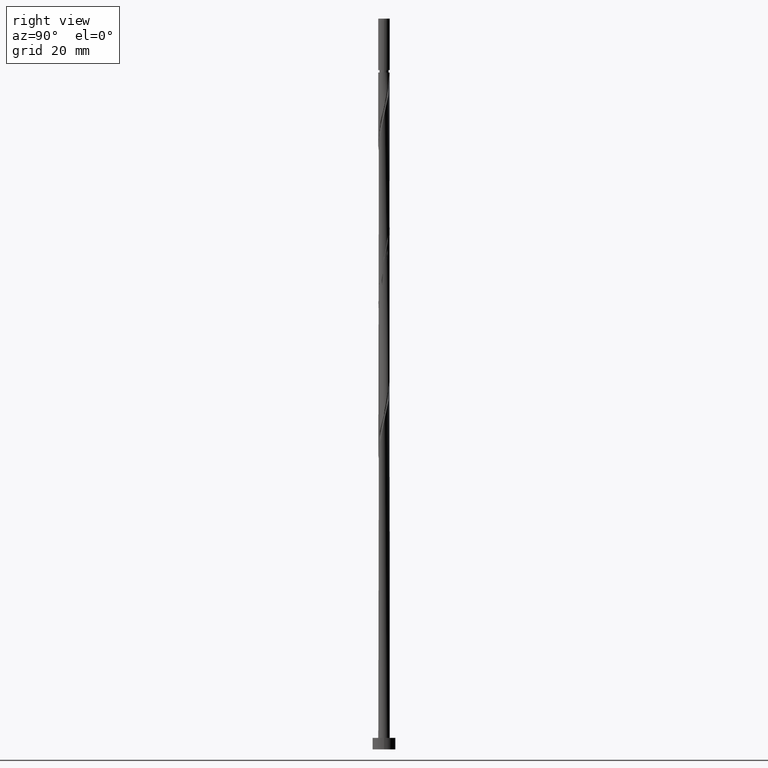
[diagram: clean part render]
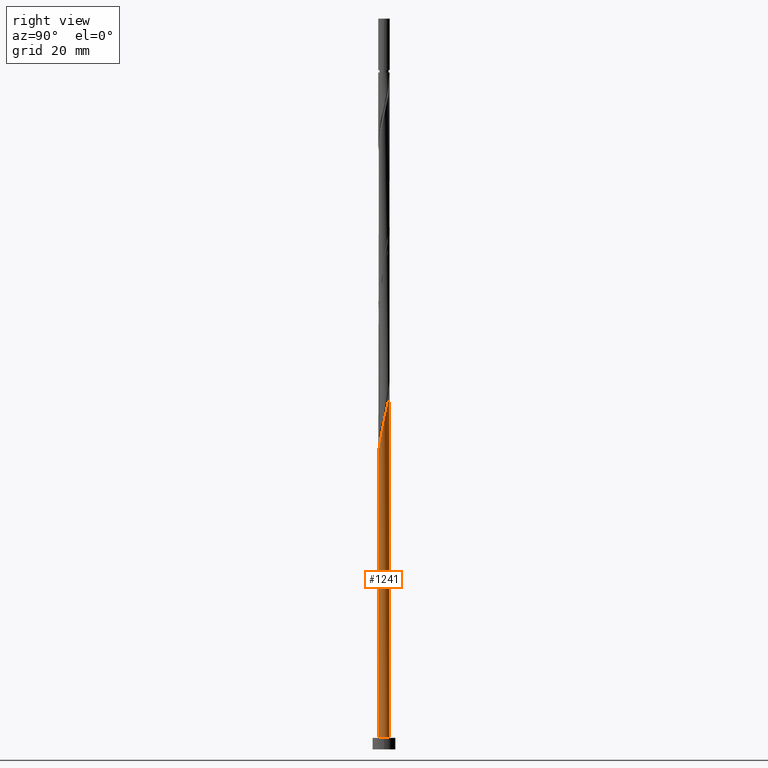
[diagram: same view with one face highlighted and labeled with its STEP entity id]
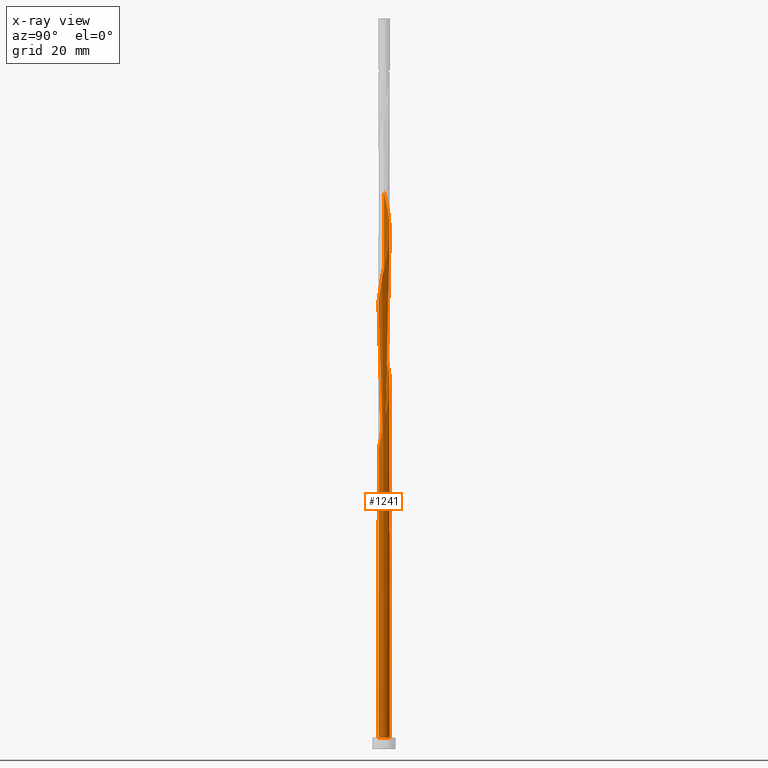
[diagram: x-ray of the same camera — body ghosted, the highlighted face saturated]
A machine part, right view. The second image highlights one B-rep face of the part: STEP entity #1241.
The next image is the same camera in x-ray: the body ghosted, the highlighted face saturated — about 0% of this face is hidden behind the body in this view.
In plain terms, the highlighted cylindrical surface (bore or boss wall) has radius 1 mm, axis along (-0, -0, -1).
Its self-contained STEP definition (entity closure, byte-faithful):
#6 = CARTESIAN_POINT ( 'NONE',  ( 0.9900775620072773675, 0.2010438236649775279, 57.85761249961687014 ) ) ;
#42 = CARTESIAN_POINT ( 'NONE',  ( 0.4670345966523012371, -0.8842390432059793470, 52.40306704507140978 ) ) ;
#50 = EDGE_CURVE ( 'NONE', #1056, #1082, #59, .T. ) ;
#51 = CARTESIAN_POINT ( 'NONE',  ( 0.9415987439861374098, -0.3661475155560076633, 82.10003674204112656 ) ) ;
#58 = CARTESIAN_POINT ( 'NONE',  ( -0.05809475930625000034, 1.008611519250725452, 63.91821856022292536 ) ) ;
#59 = LINE ( 'NONE', #669, #438 ) ;
#61 = CARTESIAN_POINT ( 'NONE',  ( -0.1989974874213241707, 0.9800000000000018696, 37.85761249961686303 ) ) ;
#64 =( BOUNDED_CURVE ( )  B_SPLINE_CURVE ( 2, ( #263, #155, #280, #126, #1193, #1333, #253, #1079, #1182, #627, #964, #727, #1219, #1305, #735, #383, #42, #971, #864, #1341, #1461, #1439, #398, #245, #855, #6, #606, #272, #873, #987, #490, #368, #957, #786, #72, #58, #1352, #762, #529, #1139, #1469, #406, #173, #1000, #883, #1366, #1117, #994, #551, #1478, #904, #897, #293, #1374, #537, #1491, #1017, #1500, #1242, #191, #300, #1123, #1131, #1227, #65, #51, #179, #646, #1360, #312, #429, #415, #1252, #668, #891, #1008, #768, #1235, #654, #544, #1485, #421, #305, #776, #184, #660, #1224, #1076, #618, #750, #1323 ),
 .UNSPECIFIED., .F., .T. ) 
 B_SPLINE_CURVE_WITH_KNOTS ( ( 3, 2, 2, 2, 2, 2, 2, 2, 2, 2, 2, 2, 2, 2, 2, 2, 2, 2, 2, 2, 2, 2, 2, 2, 2, 2, 2, 2, 2, 2, 2, 2, 2, 2, 2, 2, 2, 2, 2, 2, 2, 2, 2, 2, 2, 3 ),
 ( 0.05452521624175121068, 0.05681818181818176772, 0.06818181818181823228, 0.07954545454545458583, 0.09090909090909093937, 0.1022727272727272929, 0.1136363636363636465, 0.1250000000000000000, 0.1363636363636363535, 0.1477272727272727071, 0.1590909090909090606, 0.1704545454545454142, 0.1818181818181817677, 0.1931818181818182323, 0.2045454545454545858, 0.2159090909090909394, 0.2272727272727272929, 0.2386363636363636465, 0.2500000000000000000, 0.2613636363636363535, 0.2727272727272727071, 0.2840909090909090606, 0.2954545454545454142, 0.3068181818181817677, 0.3181818181818182323, 0.3295454545454545858, 0.3409090909090909394, 0.3522727272727272929, 0.3636363636363636465, 0.3750000000000000000, 0.3863636363636363535, 0.3977272727272727071, 0.4090909090909090606, 0.4204545454545454142, 0.4318181818181817677, 0.4431818181818182323, 0.4545454545454545858, 0.4659090909090909394, 0.4772727272727272929, 0.4886363636363636465, 0.5000000000000000000, 0.5113636363636363535, 0.5227272727272727071, 0.5340909090909091717, 0.5454545454545454142, 0.5545252162417511066 ),
 .UNSPECIFIED. ) 
 CURVE ( )  GEOMETRIC_REPRESENTATION_ITEM ( )  RATIONAL_B_SPLINE_CURVE ( ( 0.9061101570135670080, 0.9072237824201492273, 0.9090909090909268242, 0.8998376744372290625, 0.9090909090909268242, 0.8998376744372290625, 0.9090909090909268242, 0.8998376744372290625, 0.9090909090909268242, 0.8998376744372290625, 0.9090909090909268242, 0.8998376744372290625, 0.9090909090909268242, 0.8998376744372290625, 0.9090909090909268242, 0.8998376744372290625, 0.9090909090909268242, 0.8998376744372290625, 0.9090909090909268242, 0.8998376744372290625, 0.9090909090909268242, 0.8998376744372290625, 0.9090909090909268242, 0.8998376744372290625, 0.9090909090909268242, 0.8998376744372290625, 0.9090909090909268242, 0.8998376744372290625, 0.9090909090909268242, 0.8998376744372290625, 0.9090909090909268242, 0.8998376744372290625, 0.9090909090909268242, 0.8998376744372290625, 0.9090909090909268242, 0.8998376744372290625, 0.9090909090909268242, 0.8998376744372290625, 0.9090909090909268242, 0.8998376744372290625, 0.9090909090909268242, 0.8998376744372290625, 0.9090909090909268242, 0.8998376744372290625, 0.9090909090909268242, 0.8998376744372290625, 0.9090909090909268242, 0.8998376744372290625, 0.9090909090909268242, 0.8998376744372290625, 0.9090909090909268242, 0.8998376744372290625, 0.9090909090909268242, 0.8998376744372290625, 0.9090909090909268242, 0.8998376744372290625, 0.9090909090909268242, 0.8998376744372290625, 0.9090909090909268242, 0.8998376744372290625, 0.9090909090909268242, 0.8998376744372290625, 0.9090909090909268242, 0.8998376744372290625, 0.9090909090909268242, 0.8998376744372290625, 0.9090909090909268242, 0.8998376744372290625, 0.9090909090909268242, 0.8998376744372290625, 0.9090909090909268242, 0.8998376744372290625, 0.9090909090909268242, 0.8998376744372290625, 0.9090909090909268242, 0.8998376744372290625, 0.9090909090909268242, 0.8998376744372290625, 0.9090909090909268242, 0.8998376744372290625, 0.9090909090909268242, 0.8998376744372290625, 0.9090909090909268242, 0.8998376744372290625, 0.9090909090909268242, 0.8998376744372290625, 0.9090909090909268242, 0.8998376744372290625, 0.9090909090909268242, 0.9017048011080068814, 0.9061101570135668970 ) ) 
 REPRESENTATION_ITEM ( '' )  );
#65 = CARTESIAN_POINT ( 'NONE',  ( 0.8709502235331703091, -0.4913712528501480437, 81.49397613598051748 ) ) ;
#72 = CARTESIAN_POINT ( 'NONE',  ( 0.08516121475690170695, 0.9963671850784390216, 63.31215795416232339 ) ) ;
#104 = DIRECTION ( 'NONE',  ( -0.000000000000000000, -0.000000000000000000, -1.000000000000000000 ) ) ;
#126 = CARTESIAN_POINT ( 'NONE',  ( -0.9900775620072773675, -0.2010438236649776944, 44.52427916628354154 ) ) ;
#140 = CARTESIAN_POINT ( 'NONE',  ( -1.000000000000001554, -6.244472643709706165E-16, 97.00815802031597457 ) ) ;
#148 = DIRECTION ( 'NONE',  ( -1.000000000000000000, 0.000000000000000000, 0.000000000000000000 ) ) ;
#155 = CARTESIAN_POINT ( 'NONE',  ( -1.000000000000001776, -0.02877552652382126333, 43.79692269170086405 ) ) ;
#159 = AXIS2_PLACEMENT_3D ( 'NONE', #547, #790, #575 ) ;
#167 = CARTESIAN_POINT ( 'NONE',  ( -0.3399002155363984312, 0.9513884807492775098, 38.46367310567747211 ) ) ;
#170 = EDGE_CURVE ( 'NONE', #1082, #859, #952, .T. ) ;
#173 = CARTESIAN_POINT ( 'NONE',  ( -0.8709502235331704201, 0.4913712528501477106, 68.16064280264717468 ) ) ;
#179 = CARTESIAN_POINT ( 'NONE',  ( 0.9741058992719017207, -0.2260922311882544444, 82.70609734810170721 ) ) ;
#184 = CARTESIAN_POINT ( 'NONE',  ( -0.6972353404242042085, 0.7168422979034841935, 93.61518825719262793 ) ) ;
#191 = CARTESIAN_POINT ( 'NONE',  ( 0.3399002155363982092, -0.9513884807492776208, 78.46367310567748632 ) ) ;
#207 = CARTESIAN_POINT ( 'NONE',  ( 0.05809475930625013218, 1.008611519250725452, 38.46367310567746500 ) ) ;
#245 = CARTESIAN_POINT ( 'NONE',  ( 1.006613054557666143, -0.08603694682050122555, 56.64549128749565199 ) ) ;
#253 = CARTESIAN_POINT ( 'NONE',  ( -0.8087728116229573327, -0.5881211942954442939, 46.34246098446535456 ) ) ;
#263 = CARTESIAN_POINT ( 'NONE',  ( -1.000000000000001554, -6.244472643709705179E-16, 43.67482468698264597 ) ) ;
#272 = CARTESIAN_POINT ( 'NONE',  ( 0.8933318736010429362, 0.4718372192107772034, 59.06973371173807408 ) ) ;
#280 = CARTESIAN_POINT ( 'NONE',  ( -0.9983453082824714775, -0.05750343842223831770, 43.91821856022292536 ) ) ;
#282 = EDGE_CURVE ( 'NONE', #988, #757, #1127, .T. ) ;
#283 = CARTESIAN_POINT ( 'NONE',  ( -1.000000000000000000, 0.000000000000000000, 2.000000000000000000 ) ) ;
#293 = CARTESIAN_POINT ( 'NONE',  ( -0.6103189422011784382, -0.7921557856826128008, 74.22124886325323700 ) ) ;
#297 = FACE_OUTER_BOUND ( 'NONE', #770, .T. ) ;
#300 = CARTESIAN_POINT ( 'NONE',  ( 0.4670345966523012371, -0.8842390432059793470, 79.06973371173806697 ) ) ;
#305 = CARTESIAN_POINT ( 'NONE',  ( -0.4670345966523016257, 0.8842390432059791250, 92.40306704507140978 ) ) ;
#309 = CIRCLE ( 'NONE', #159, 1.000000000000000000 ) ;
#312 = CARTESIAN_POINT ( 'NONE',  ( 0.9900775620072773675, 0.2010438236649775279, 84.52427916628353444 ) ) ;
#360 = CARTESIAN_POINT ( 'NONE',  ( -0.3624206617887689164, 0.9320146264456334873, 40.28185492385929223 ) ) ;
#368 = CARTESIAN_POINT ( 'NONE',  ( 0.4964241347574844254, 0.8799064019851153828, 61.49397613598049617 ) ) ;
#376 = CARTESIAN_POINT ( 'NONE',  ( -0.9741058992719016096, 0.2260922311882545277, 42.70609734810171432 ) ) ;
#383 = CARTESIAN_POINT ( 'NONE',  ( 0.3399002155363982092, -0.9513884807492776208, 51.79700643901080781 ) ) ;
#398 = CARTESIAN_POINT ( 'NONE',  ( 0.9741058992719017207, -0.2260922311882544444, 56.03943068143504291 ) ) ;
#401 = ORIENTED_EDGE ( 'NONE', *, *, #1363, .T. ) ;
#406 = CARTESIAN_POINT ( 'NONE',  ( -0.8003017030802036524, 0.6165949901442877579, 67.55458219658656560 ) ) ;
#415 = CARTESIAN_POINT ( 'NONE',  ( 0.8933318736010429362, 0.4718372192107772034, 85.73640037840475259 ) ) ;
#421 = CARTESIAN_POINT ( 'NONE',  ( -0.3399002155363984312, 0.9513884807492775098, 91.79700643901081492 ) ) ;
#422 = DIRECTION ( 'NONE',  ( 1.000000000000000000, 0.000000000000000000, 0.000000000000000000 ) ) ;
#429 = CARTESIAN_POINT ( 'NONE',  ( 0.9417047178041598743, 0.3364405214378773934, 85.13033977234411509 ) ) ;
#438 = VECTOR ( 'NONE', #1140, 1000.000000000000000 ) ;
#483 = CARTESIAN_POINT ( 'NONE',  ( -1.000000000000001776, 0.02877552652382142293, 45.25163564086621193 ) ) ;
#489 = EDGE_CURVE ( 'NONE', #1056, #1455, #64, .T. ) ;
#490 = CARTESIAN_POINT ( 'NONE',  ( 0.6103189422011783272, 0.7921557856826130228, 60.88791552991990130 ) ) ;
#529 = CARTESIAN_POINT ( 'NONE',  ( -0.4670345966523016257, 0.8842390432059791250, 65.73640037840473838 ) ) ;
#531 = ORIENTED_EDGE ( 'NONE', *, *, #1078, .T. ) ;
#537 = CARTESIAN_POINT ( 'NONE',  ( -0.3624206617887691939, -0.9320146264456335983, 75.43337007537441252 ) ) ;
#544 = CARTESIAN_POINT ( 'NONE',  ( -0.05809475930625000034, 1.008611519250725452, 90.58488522688961098 ) ) ;
#547 = CARTESIAN_POINT ( 'NONE',  ( 0.000000000000000000, 0.000000000000000000, 2.000000000000000000 ) ) ;
#551 = CARTESIAN_POINT ( 'NONE',  ( -0.9417047178041598743, -0.3364405214378775044, 71.79700643901082913 ) ) ;
#566 = CARTESIAN_POINT ( 'NONE',  ( -0.9417047178041597633, 0.3364405214378776154, 43.91821856022291826 ) ) ;
#575 = DIRECTION ( 'NONE',  ( 1.000000000000000000, 0.000000000000000000, 0.000000000000000000 ) ) ;
#606 = CARTESIAN_POINT ( 'NONE',  ( 0.9417047178041598743, 0.3364405214378773934, 58.46367310567747211 ) ) ;
#618 = CARTESIAN_POINT ( 'NONE',  ( -0.9741058992719016096, 0.2260922311882545277, 96.03943068143505002 ) ) ;
#627 = CARTESIAN_POINT ( 'NONE',  ( -0.4964241347574847585, -0.8799064019851151608, 48.16064280264716757 ) ) ;
#639 = CARTESIAN_POINT ( 'NONE',  ( 1.000000000000000000, 0.000000000000000000, 2.000000000000000000 ) ) ;
#646 = CARTESIAN_POINT ( 'NONE',  ( 1.006613054557666143, -0.08603694682050122555, 83.31215795416233050 ) ) ;
#647 = CARTESIAN_POINT ( 'NONE',  ( 0.000000000000000000, 0.000000000000000000, 2.000000000000000000 ) ) ;
#654 = CARTESIAN_POINT ( 'NONE',  ( 0.08516121475690170695, 0.9963671850784390216, 89.97882462082898769 ) ) ;
#660 = CARTESIAN_POINT ( 'NONE',  ( -0.8003017030802036524, 0.6165949901442877579, 94.22124886325322279 ) ) ;
#668 = CARTESIAN_POINT ( 'NONE',  ( 0.7242137496448726175, 0.7044051693801105518, 86.94852159052595653 ) ) ;
#669 = CARTESIAN_POINT ( 'NONE',  ( -1.000000000000000000, 0.000000000000000000, 127.2300000000000040 ) ) ;
#688 = ORIENTED_EDGE ( 'NONE', *, *, #50, .T. ) ;
#712 = CARTESIAN_POINT ( 'NONE',  ( -1.000000000000001776, 7.104489834160828928E-16, 45.37373364558442290 ) ) ;
#722 = CARTESIAN_POINT ( 'NONE',  ( -1.000000000000001776, 7.104489834160828928E-16, 45.37373364558442290 ) ) ;
#727 = CARTESIAN_POINT ( 'NONE',  ( -0.2284171888200533240, -0.9841228509061522578, 49.37276401476839283 ) ) ;
#729 = CARTESIAN_POINT ( 'NONE',  ( -0.9415987439861371877, 0.3661475155560079964, 42.10003674204110524 ) ) ;
#730 = ORIENTED_EDGE ( 'NONE', *, *, #1407, .F. ) ;
#735 = CARTESIAN_POINT ( 'NONE',  ( 0.1989974874213241429, -0.9800000000000018696, 51.19094583295020584 ) ) ;
#750 = CARTESIAN_POINT ( 'NONE',  ( -1.000000000000000888, 0.1145289273851266831, 96.52219806734464669 ) ) ;
#757 = VERTEX_POINT ( 'NONE', #1055 ) ;
#762 = CARTESIAN_POINT ( 'NONE',  ( -0.3399002155363984312, 0.9513884807492775098, 65.13033977234412930 ) ) ;
#768 = CARTESIAN_POINT ( 'NONE',  ( 0.3624206617887688608, 0.9320146264456335983, 88.76670340870778375 ) ) ;
#770 = EDGE_LOOP ( 'NONE', ( #730, #892, #688, #772, #401, #1236, #788, #531, #1328 ) ) ;
#772 = ORIENTED_EDGE ( 'NONE', *, *, #170, .T. ) ;
#776 = CARTESIAN_POINT ( 'NONE',  ( -0.5941689777682047646, 0.8170896056626808512, 93.00912765113199043 ) ) ;
#786 = CARTESIAN_POINT ( 'NONE',  ( 0.2284171888200534350, 0.9841228509061522578, 62.70609734810170011 ) ) ;
#788 = ORIENTED_EDGE ( 'NONE', *, *, #833, .F. ) ;
#790 = DIRECTION ( 'NONE',  ( 0.000000000000000000, 0.000000000000000000, 1.000000000000000000 ) ) ;
#833 = EDGE_CURVE ( 'NONE', #1212, #1056, #1512, .T. ) ;
#841 = CARTESIAN_POINT ( 'NONE',  ( 0.000000000000000000, 0.000000000000000000, 37.85761249961686303 ) ) ;
#855 = CARTESIAN_POINT ( 'NONE',  ( 0.9983453082824714775, 0.05750343842223819280, 57.25155189355626817 ) ) ;
#858 = CARTESIAN_POINT ( 'NONE',  ( -0.8709502235331704201, 0.4913712528501477106, 41.49397613598048906 ) ) ;
#859 = VERTEX_POINT ( 'NONE', #639 ) ;
#864 = CARTESIAN_POINT ( 'NONE',  ( 0.6972353404242042085, -0.7168422979034841935, 53.61518825719262793 ) ) ;
#870 = CYLINDRICAL_SURFACE ( 'NONE', #1419, 1.000000000000000000 ) ;
#873 = CARTESIAN_POINT ( 'NONE',  ( 0.8087728116229575548, 0.5881211942954440719, 59.67579431779869736 ) ) ;
#875 = CARTESIAN_POINT ( 'NONE',  ( -1.000000000000001554, -6.244472643709706165E-16, 43.67482468698264597 ) ) ;
#883 = CARTESIAN_POINT ( 'NONE',  ( -0.9741058992719016096, 0.2260922311882545277, 69.37276401476837862 ) ) ;
#891 = CARTESIAN_POINT ( 'NONE',  ( 0.6103189422011783272, 0.7921557856826130228, 87.55458219658655139 ) ) ;
#892 = ORIENTED_EDGE ( 'NONE', *, *, #489, .F. ) ;
#897 = CARTESIAN_POINT ( 'NONE',  ( -0.7242137496448720624, -0.7044051693801109959, 73.61518825719261372 ) ) ;
#904 = CARTESIAN_POINT ( 'NONE',  ( -0.8087728116229573327, -0.5881211942954442939, 73.00912765113200464 ) ) ;
#934 = CARTESIAN_POINT ( 'NONE',  ( -0.2284171888200533240, 0.9841228509061520358, 39.67579431779867605 ) ) ;
#949 = CARTESIAN_POINT ( 'NONE',  ( -0.08516121475690160980, 0.9963671850784389106, 39.06973371173807408 ) ) ;
#952 = CIRCLE ( 'NONE', #1402, 1.000000000000000000 ) ;
#957 = CARTESIAN_POINT ( 'NONE',  ( 0.3624206617887688608, 0.9320146264456335983, 62.10003674204111235 ) ) ;
#964 = CARTESIAN_POINT ( 'NONE',  ( -0.3624206617887691939, -0.9320146264456335983, 48.76670340870776954 ) ) ;
#966 = CARTESIAN_POINT ( 'NONE',  ( -0.8003017030802036524, 0.6165949901442877579, 40.88791552991990130 ) ) ;
#971 = CARTESIAN_POINT ( 'NONE',  ( 0.5941689777682047646, -0.8170896056626807402, 53.00912765113200464 ) ) ;
#980 = CARTESIAN_POINT ( 'NONE',  ( -0.4670345966523016257, 0.8842390432059791250, 39.06973371173809539 ) ) ;
#987 = CARTESIAN_POINT ( 'NONE',  ( 0.7242137496448726175, 0.7044051693801105518, 60.28185492385928512 ) ) ;
#988 = VERTEX_POINT ( 'NONE', #722 ) ;
#994 = CARTESIAN_POINT ( 'NONE',  ( -0.9900775620072773675, -0.2010438236649776944, 71.19094583295020584 ) ) ;
#1000 = CARTESIAN_POINT ( 'NONE',  ( -0.9415987439861371877, 0.3661475155560079964, 68.76670340870778375 ) ) ;
#1008 = CARTESIAN_POINT ( 'NONE',  ( 0.4964241347574844254, 0.8799064019851153828, 88.16064280264720310 ) ) ;
#1017 = CARTESIAN_POINT ( 'NONE',  ( -0.08516121475690160980, -0.9963671850784390216, 76.64549128749564488 ) ) ;
#1035 = LINE ( 'NONE', #1520, #1477 ) ;
#1055 = CARTESIAN_POINT ( 'NONE',  ( 0.1989974874213245870, 0.9800000000000017586, 37.85761249961686303 ) ) ;
#1056 = VERTEX_POINT ( 'NONE', #875 ) ;
#1061 = CARTESIAN_POINT ( 'NONE',  ( -0.8087728116229573327, 0.5881211942954442939, 42.70609734810172142 ) ) ;
#1076 = CARTESIAN_POINT ( 'NONE',  ( -0.9415987439861371877, 0.3661475155560079964, 95.43337007537448358 ) ) ;
#1078 = EDGE_CURVE ( 'NONE', #1212, #757, #1445, .T. ) ;
#1079 = CARTESIAN_POINT ( 'NONE',  ( -0.7242137496448720624, -0.7044051693801109959, 46.94852159052595653 ) ) ;
#1082 = VERTEX_POINT ( 'NONE', #283 ) ;
#1087 = CARTESIAN_POINT ( 'NONE',  ( -1.000000000000001554, -6.244472643709705179E-16, 43.67482468698264597 ) ) ;
#1117 = CARTESIAN_POINT ( 'NONE',  ( -0.9983453082824714775, -0.05750343842223831770, 70.58488522688958255 ) ) ;
#1123 = CARTESIAN_POINT ( 'NONE',  ( 0.5941689777682047646, -0.8170896056626807402, 79.67579431779870447 ) ) ;
#1124 = DIRECTION ( 'NONE',  ( 0.000000000000000000, 0.000000000000000000, 1.000000000000000000 ) ) ;
#1126 = DIRECTION ( 'NONE',  ( -1.000000000000000000, 0.000000000000000000, 0.000000000000000000 ) ) ;
#1127 =( BOUNDED_CURVE ( )  B_SPLINE_CURVE ( 2, ( #712, #483, #1161, #1151, #566, #1274, #1061, #1267, #1511, #1532, #360, #934, #949, #207, #1411 ),
 .UNSPECIFIED., .F., .T. ) 
 B_SPLINE_CURVE_WITH_KNOTS ( ( 3, 2, 2, 2, 2, 2, 2, 3 ),
 ( 0.9295252162417512176, 0.9318181818181817677, 0.9431818181818182323, 0.9545454545454545858, 0.9659090909090909394, 0.9772727272727272929, 0.9886363636363636465, 1.000000000000000000 ),
 .UNSPECIFIED. ) 
 CURVE ( )  GEOMETRIC_REPRESENTATION_ITEM ( )  RATIONAL_B_SPLINE_CURVE ( ( 0.9061101570135562389, 0.9072237824201384582, 0.9090909090909159440, 0.8998376744372184044, 0.9090909090909159440, 0.8998376744372184044, 0.9090909090909159440, 0.8998376744372184044, 0.9090909090909159440, 0.8998376744372184044, 0.9090909090909159440, 0.8998376744372184044, 0.9090909090909159440, 0.8998376744372184044, 0.9090909090909159440 ) ) 
 REPRESENTATION_ITEM ( '' )  );
#1131 = CARTESIAN_POINT ( 'NONE',  ( 0.6972353404242042085, -0.7168422979034841935, 80.28185492385929933 ) ) ;
#1139 = CARTESIAN_POINT ( 'NONE',  ( -0.5941689777682047646, 0.8170896056626808512, 66.34246098446536166 ) ) ;
#1140 = DIRECTION ( 'NONE',  ( -0.000000000000000000, -0.000000000000000000, -1.000000000000000000 ) ) ;
#1151 = CARTESIAN_POINT ( 'NONE',  ( -0.9900775620072769234, 0.2010438236649777222, 44.52427916628351312 ) ) ;
#1161 = CARTESIAN_POINT ( 'NONE',  ( -0.9983453082824714775, 0.05750343842223841484, 45.13033977234414351 ) ) ;
#1162 = AXIS2_PLACEMENT_3D ( 'NONE', #841, #1343, #148 ) ;
#1182 = CARTESIAN_POINT ( 'NONE',  ( -0.6103189422011784382, -0.7921557856826128008, 47.55458219658656560 ) ) ;
#1193 = CARTESIAN_POINT ( 'NONE',  ( -0.9417047178041598743, -0.3364405214378775044, 45.13033977234414351 ) ) ;
#1195 = CARTESIAN_POINT ( 'NONE',  ( -0.6972353404242042085, 0.7168422979034841935, 40.28185492385929223 ) ) ;
#1212 = VERTEX_POINT ( 'NONE', #61 ) ;
#1219 = CARTESIAN_POINT ( 'NONE',  ( -0.08516121475690160980, -0.9963671850784390216, 49.97882462082899480 ) ) ;
#1224 = CARTESIAN_POINT ( 'NONE',  ( -0.8709502235331704201, 0.4913712528501477106, 94.82730946931383187 ) ) ;
#1227 = CARTESIAN_POINT ( 'NONE',  ( 0.8003017030802035414, -0.6165949901442878689, 80.88791552991989420 ) ) ;
#1232 = DIRECTION ( 'NONE',  ( -0.000000000000000000, -0.000000000000000000, -1.000000000000000000 ) ) ;
#1235 = CARTESIAN_POINT ( 'NONE',  ( 0.2284171888200534350, 0.9841228509061522578, 89.37276401476840704 ) ) ;
#1236 = ORIENTED_EDGE ( 'NONE', *, *, #50, .F. ) ;
#1241 = ADVANCED_FACE ( 'NONE', ( #297 ), #870, .T. ) ;
#1242 = CARTESIAN_POINT ( 'NONE',  ( 0.1989974874213241429, -0.9800000000000018696, 77.85761249961684882 ) ) ;
#1252 = CARTESIAN_POINT ( 'NONE',  ( 0.8087728116229575548, 0.5881211942954440719, 86.34246098446536166 ) ) ;
#1267 = CARTESIAN_POINT ( 'NONE',  ( -0.7242137496448719514, 0.7044051693801107739, 42.10003674204109814 ) ) ;
#1274 = CARTESIAN_POINT ( 'NONE',  ( -0.8933318736010427141, 0.4718372192107777030, 43.31215795416230918 ) ) ;
#1305 = CARTESIAN_POINT ( 'NONE',  ( 0.05809475930625013218, -1.008611519250725452, 50.58488522688959677 ) ) ;
#1316 = CARTESIAN_POINT ( 'NONE',  ( -0.5941689777682047646, 0.8170896056626808512, 39.67579431779869026 ) ) ;
#1323 = CARTESIAN_POINT ( 'NONE',  ( -1.000000000000001554, -6.244472643709706165E-16, 97.00815802031598878 ) ) ;
#1328 = ORIENTED_EDGE ( 'NONE', *, *, #282, .F. ) ;
#1333 = CARTESIAN_POINT ( 'NONE',  ( -0.8933318736010429362, -0.4718372192107775365, 45.73640037840474548 ) ) ;
#1338 = CARTESIAN_POINT ( 'NONE',  ( 0.000000000000000000, 0.000000000000000000, 127.2300000000000040 ) ) ;
#1341 = CARTESIAN_POINT ( 'NONE',  ( 0.8003017030802035414, -0.6165949901442878689, 54.22124886325324411 ) ) ;
#1343 = DIRECTION ( 'NONE',  ( 0.000000000000000000, 0.000000000000000000, -1.000000000000000000 ) ) ;
#1352 = CARTESIAN_POINT ( 'NONE',  ( -0.1989974874213240319, 0.9800000000000018696, 64.52427916628354865 ) ) ;
#1360 = CARTESIAN_POINT ( 'NONE',  ( 0.9983453082824714775, 0.05750343842223819280, 83.91821856022293957 ) ) ;
#1363 = EDGE_CURVE ( 'NONE', #859, #1082, #309, .T. ) ;
#1366 = CARTESIAN_POINT ( 'NONE',  ( -1.006613054557666143, 0.08603694682050128106, 69.97882462082898769 ) ) ;
#1374 = CARTESIAN_POINT ( 'NONE',  ( -0.4964241347574847585, -0.8799064019851151608, 74.82730946931386029 ) ) ;
#1402 = AXIS2_PLACEMENT_3D ( 'NONE', #647, #1124, #422 ) ;
#1407 = EDGE_CURVE ( 'NONE', #1455, #988, #1035, .T. ) ;
#1411 = CARTESIAN_POINT ( 'NONE',  ( 0.1989974874213245870, 0.9800000000000017586, 37.85761249961686303 ) ) ;
#1419 = AXIS2_PLACEMENT_3D ( 'NONE', #1338, #1232, #1126 ) ;
#1439 = CARTESIAN_POINT ( 'NONE',  ( 0.9415987439861374098, -0.3661475155560076633, 55.43337007537443384 ) ) ;
#1445 = CIRCLE ( 'NONE', #1162, 1.000000000000000000 ) ;
#1454 = CARTESIAN_POINT ( 'NONE',  ( -0.1989974874213241429, 0.9800000000000018696, 37.85761249961686303 ) ) ;
#1455 = VERTEX_POINT ( 'NONE', #140 ) ;
#1461 = CARTESIAN_POINT ( 'NONE',  ( 0.8709502235331703091, -0.4913712528501480437, 54.82730946931383897 ) ) ;
#1463 = CARTESIAN_POINT ( 'NONE',  ( -1.000000000000001332, 0.1145289273851242962, 43.18886473401133941 ) ) ;
#1469 = CARTESIAN_POINT ( 'NONE',  ( -0.6972353404242042085, 0.7168422979034841935, 66.94852159052594232 ) ) ;
#1477 = VECTOR ( 'NONE', #104, 1000.000000000000000 ) ;
#1478 = CARTESIAN_POINT ( 'NONE',  ( -0.8933318736010429362, -0.4718372192107775365, 72.40306704507142399 ) ) ;
#1485 = CARTESIAN_POINT ( 'NONE',  ( -0.1989974874213240319, 0.9800000000000018696, 91.19094583295020584 ) ) ;
#1491 = CARTESIAN_POINT ( 'NONE',  ( -0.2284171888200533240, -0.9841228509061522578, 76.03943068143503581 ) ) ;
#1500 = CARTESIAN_POINT ( 'NONE',  ( 0.05809475930625013218, -1.008611519250725452, 77.25155189355626817 ) ) ;
#1511 = CARTESIAN_POINT ( 'NONE',  ( -0.6103189422011783272, 0.7921557856826132449, 41.49397613598048906 ) ) ;
#1512 =( BOUNDED_CURVE ( )  B_SPLINE_CURVE ( 2, ( #1454, #167, #980, #1316, #1195, #966, #858, #729, #376, #1463, #1087 ),
 .UNSPECIFIED., .F., .T. ) 
 B_SPLINE_CURVE_WITH_KNOTS ( ( 3, 2, 2, 2, 2, 3 ),
 ( 0.000000000000000000, 0.01136363636363635528, 0.02272727272727271056, 0.03409090909090906063, 0.04545454545454542111, 0.05452521624175121068 ),
 .UNSPECIFIED. ) 
 CURVE ( )  GEOMETRIC_REPRESENTATION_ITEM ( )  RATIONAL_B_SPLINE_CURVE ( ( 0.9090909090909268242, 0.8998376744372290625, 0.9090909090909268242, 0.8998376744372290625, 0.9090909090909268242, 0.8998376744372290625, 0.9090909090909268242, 0.8998376744372290625, 0.9090909090909268242, 0.9017048011080066594, 0.9061101570135670080 ) ) 
 REPRESENTATION_ITEM ( '' )  );
#1520 = CARTESIAN_POINT ( 'NONE',  ( -1.000000000000000000, 0.000000000000000000, 127.2300000000000040 ) ) ;
#1532 = CARTESIAN_POINT ( 'NONE',  ( -0.4964241347574845364, 0.8799064019851151608, 40.88791552991987999 ) ) ;